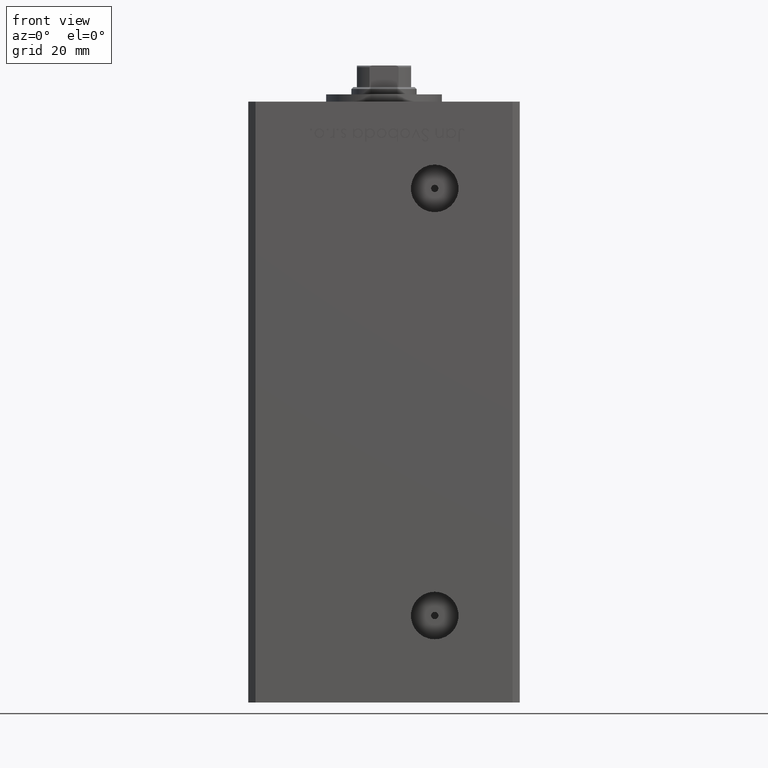
[diagram: clean part render]
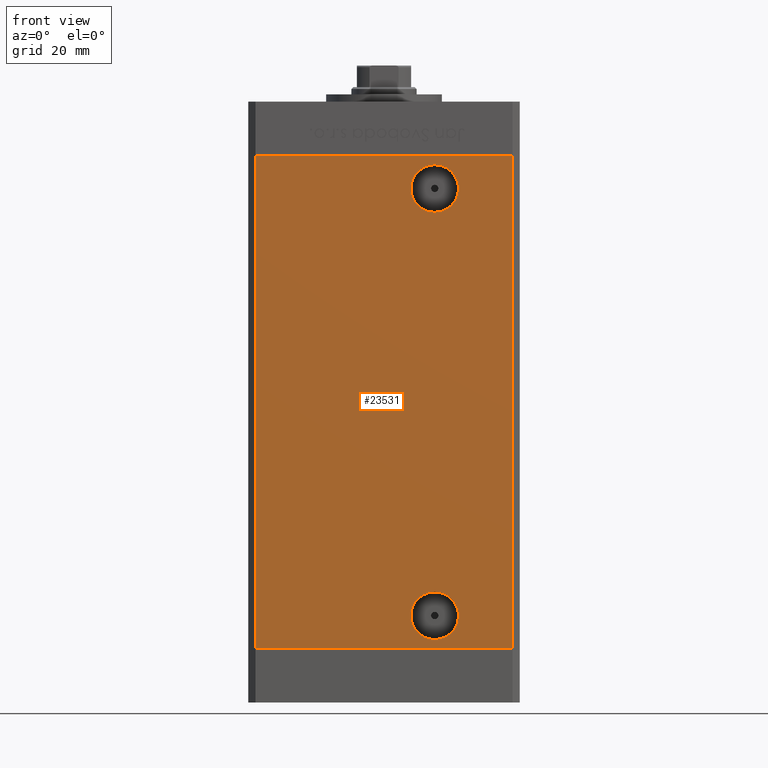
[diagram: same view with one face highlighted and labeled with its STEP entity id]
A machine part, front view. The second image highlights one B-rep face of the part: STEP entity #23531.
In plain terms, the highlighted planar face has unit normal (0, 1, 0).
Its self-contained STEP definition (entity closure, byte-faithful):
#130 = VECTOR ( 'NONE', #32542, 1000.000000000000000 ) ;
#1456 = VECTOR ( 'NONE', #5700, 1000.000000000000000 ) ;
#3143 = CARTESIAN_POINT ( 'NONE',  ( 35.49999999999999289, -32.50000000000000000, 136.0000000000000000 ) ) ;
#3583 = CARTESIAN_POINT ( 'NONE',  ( -35.49999999999999289, -32.50000000000000000, 136.0000000000000000 ) ) ;
#4189 = ORIENTED_EDGE ( 'NONE', *, *, #51825, .F. ) ;
#4822 = CARTESIAN_POINT ( 'NONE',  ( -35.49999999999999289, -32.50000000000000000, 0.000000000000000000 ) ) ;
#5189 = LINE ( 'NONE', #45822, #1456 ) ;
#5526 = EDGE_LOOP ( 'NONE', ( #27942, #39778, #50339, #30862 ) ) ;
#5700 = DIRECTION ( 'NONE',  ( -0.000000000000000000, -0.000000000000000000, -1.000000000000000000 ) ) ;
#6184 = EDGE_CURVE ( 'NONE', #45286, #10638, #23483, .T. ) ;
#7288 = CARTESIAN_POINT ( 'NONE',  ( 13.99999999999999112, -32.50000000000000000, 2.420000000000009699 ) ) ;
#8778 = LINE ( 'NONE', #4822, #130 ) ;
#9115 = ORIENTED_EDGE ( 'NONE', *, *, #15951, .T. ) ;
#10638 = VERTEX_POINT ( 'NONE', #13431 ) ;
#11104 = DIRECTION ( 'NONE',  ( 0.000000000000000000, 0.000000000000000000, -1.000000000000000000 ) ) ;
#12913 = CARTESIAN_POINT ( 'NONE',  ( 13.99999999999999112, -32.50000000000000000, 9.000000000000007105 ) ) ;
#13028 = CARTESIAN_POINT ( 'NONE',  ( -35.49999999999999289, -32.50000000000000000, 136.0000000000000000 ) ) ;
#13431 = CARTESIAN_POINT ( 'NONE',  ( 13.99999999999999112, -32.50000000000000000, 120.4200000000000017 ) ) ;
#15951 = EDGE_CURVE ( 'NONE', #10638, #45286, #19400, .T. ) ;
#16983 = FACE_OUTER_BOUND ( 'NONE', #5526, .T. ) ;
#17133 = DIRECTION ( 'NONE',  ( 0.000000000000000000, -1.000000000000000000, 0.000000000000000000 ) ) ;
#19400 = CIRCLE ( 'NONE', #44686, 6.580000000000002736 ) ;
#19547 = CARTESIAN_POINT ( 'NONE',  ( 35.49999999999999289, -32.50000000000000000, 0.000000000000000000 ) ) ;
#20318 = VECTOR ( 'NONE', #27532, 1000.000000000000000 ) ;
#20664 = ORIENTED_EDGE ( 'NONE', *, *, #46287, .F. ) ;
#21323 = VERTEX_POINT ( 'NONE', #37180 ) ;
#21420 = CARTESIAN_POINT ( 'NONE',  ( 13.99999999999999112, -32.50000000000000000, 9.000000000000007105 ) ) ;
#21869 = DIRECTION ( 'NONE',  ( 1.000000000000000000, 0.000000000000000000, 0.000000000000000000 ) ) ;
#22135 = LINE ( 'NONE', #3583, #36353 ) ;
#23168 = EDGE_CURVE ( 'NONE', #33644, #24524, #5189, .T. ) ;
#23483 = CIRCLE ( 'NONE', #52147, 6.580000000000002736 ) ;
#23531 = ADVANCED_FACE ( 'NONE', ( #38113, #16983, #33105 ), #49200, .F. ) ;
#24524 = VERTEX_POINT ( 'NONE', #19547 ) ;
#26904 = CARTESIAN_POINT ( 'NONE',  ( 13.99999999999999112, -32.50000000000000000, 127.0000000000000000 ) ) ;
#27165 = DIRECTION ( 'NONE',  ( 0.000000000000000000, 0.000000000000000000, -1.000000000000000000 ) ) ;
#27532 = DIRECTION ( 'NONE',  ( -0.000000000000000000, -0.000000000000000000, -1.000000000000000000 ) ) ;
#27942 = ORIENTED_EDGE ( 'NONE', *, *, #45157, .T. ) ;
#27969 = AXIS2_PLACEMENT_3D ( 'NONE', #12913, #17133, #41160 ) ;
#29116 = VERTEX_POINT ( 'NONE', #32969 ) ;
#29135 = DIRECTION ( 'NONE',  ( 0.000000000000000000, 1.000000000000000000, 0.000000000000000000 ) ) ;
#29208 = VERTEX_POINT ( 'NONE', #30832 ) ;
#29828 = CIRCLE ( 'NONE', #33181, 6.579999999999998295 ) ;
#30291 = DIRECTION ( 'NONE',  ( 0.000000000000000000, 0.000000000000000000, -1.000000000000000000 ) ) ;
#30553 = CARTESIAN_POINT ( 'NONE',  ( 13.99999999999999112, -32.50000000000000000, 127.0000000000000000 ) ) ;
#30832 = CARTESIAN_POINT ( 'NONE',  ( -35.49999999999999289, -32.50000000000000000, 136.0000000000000000 ) ) ;
#30862 = ORIENTED_EDGE ( 'NONE', *, *, #44214, .T. ) ;
#31133 = VERTEX_POINT ( 'NONE', #7288 ) ;
#32542 = DIRECTION ( 'NONE',  ( 1.000000000000000000, 0.000000000000000000, 0.000000000000000000 ) ) ;
#32697 = ORIENTED_EDGE ( 'NONE', *, *, #6184, .T. ) ;
#32969 = CARTESIAN_POINT ( 'NONE',  ( -35.49999999999999289, -32.50000000000000000, 0.000000000000000000 ) ) ;
#33105 = FACE_BOUND ( 'NONE', #38796, .T. ) ;
#33181 = AXIS2_PLACEMENT_3D ( 'NONE', #21420, #37536, #11104 ) ;
#33294 = EDGE_LOOP ( 'NONE', ( #20664, #4189 ) ) ;
#33644 = VERTEX_POINT ( 'NONE', #3143 ) ;
#34240 = DIRECTION ( 'NONE',  ( -0.000000000000000000, 1.000000000000000000, -0.000000000000000000 ) ) ;
#35474 = CARTESIAN_POINT ( 'NONE',  ( -35.49999999999999289, -32.50000000000000000, 136.0000000000000000 ) ) ;
#35614 = DIRECTION ( 'NONE',  ( -0.000000000000000000, 1.000000000000000000, -0.000000000000000000 ) ) ;
#36353 = VECTOR ( 'NONE', #21869, 1000.000000000000000 ) ;
#37180 = CARTESIAN_POINT ( 'NONE',  ( 13.99999999999999112, -32.50000000000000000, 15.58000000000000718 ) ) ;
#37536 = DIRECTION ( 'NONE',  ( 0.000000000000000000, -1.000000000000000000, 0.000000000000000000 ) ) ;
#38083 = CIRCLE ( 'NONE', #27969, 6.579999999999998295 ) ;
#38113 = FACE_BOUND ( 'NONE', #33294, .T. ) ;
#38796 = EDGE_LOOP ( 'NONE', ( #9115, #32697 ) ) ;
#39254 = EDGE_CURVE ( 'NONE', #29208, #33644, #22135, .T. ) ;
#39778 = ORIENTED_EDGE ( 'NONE', *, *, #23168, .F. ) ;
#41160 = DIRECTION ( 'NONE',  ( 0.000000000000000000, 0.000000000000000000, -1.000000000000000000 ) ) ;
#44214 = EDGE_CURVE ( 'NONE', #29208, #29116, #47600, .T. ) ;
#44686 = AXIS2_PLACEMENT_3D ( 'NONE', #26904, #35614, #27165 ) ;
#45157 = EDGE_CURVE ( 'NONE', #29116, #24524, #8778, .T. ) ;
#45228 = DIRECTION ( 'NONE',  ( 0.000000000000000000, -0.000000000000000000, 1.000000000000000000 ) ) ;
#45286 = VERTEX_POINT ( 'NONE', #51662 ) ;
#45822 = CARTESIAN_POINT ( 'NONE',  ( 35.49999999999999289, -32.50000000000000000, 136.0000000000000000 ) ) ;
#46287 = EDGE_CURVE ( 'NONE', #31133, #21323, #38083, .T. ) ;
#47600 = LINE ( 'NONE', #35474, #20318 ) ;
#49200 = PLANE ( 'NONE',  #52042 ) ;
#50339 = ORIENTED_EDGE ( 'NONE', *, *, #39254, .F. ) ;
#51662 = CARTESIAN_POINT ( 'NONE',  ( 13.99999999999999112, -32.50000000000000000, 133.5800000000000125 ) ) ;
#51825 = EDGE_CURVE ( 'NONE', #21323, #31133, #29828, .T. ) ;
#52042 = AXIS2_PLACEMENT_3D ( 'NONE', #13028, #29135, #45228 ) ;
#52147 = AXIS2_PLACEMENT_3D ( 'NONE', #30553, #34240, #30291 ) ;